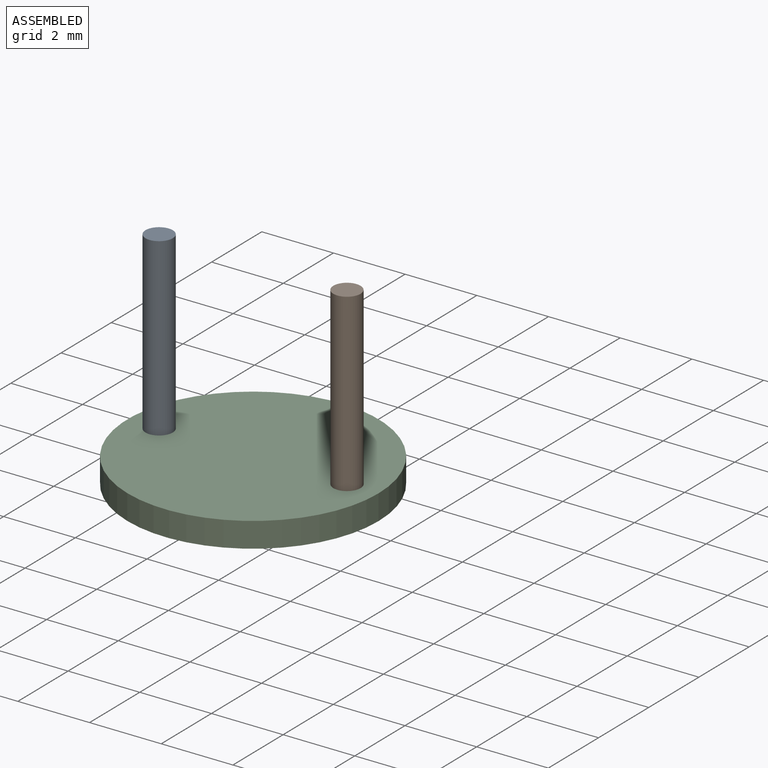
[diagram: assembled view]
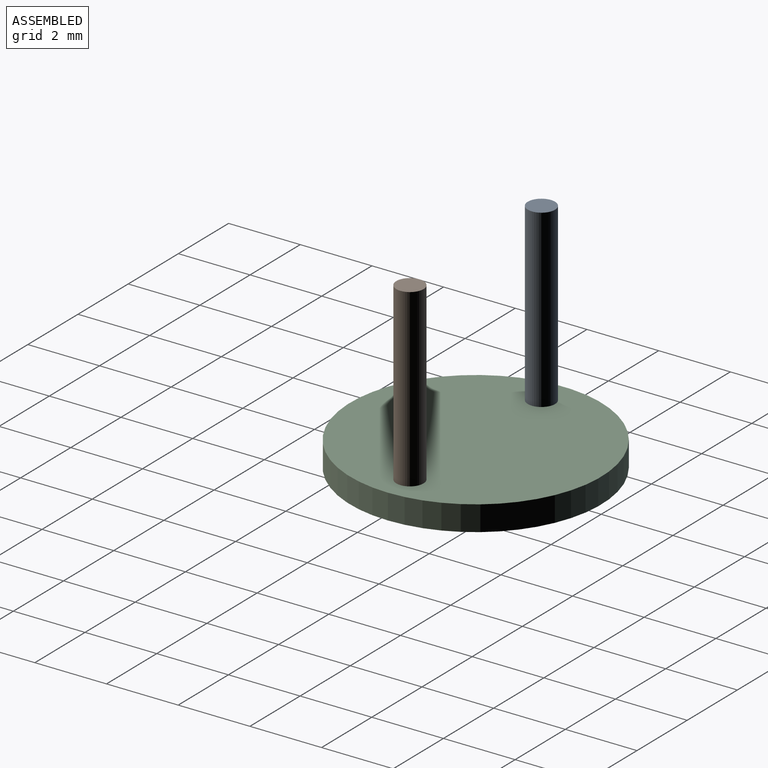
[diagram: assembled view, second angle]
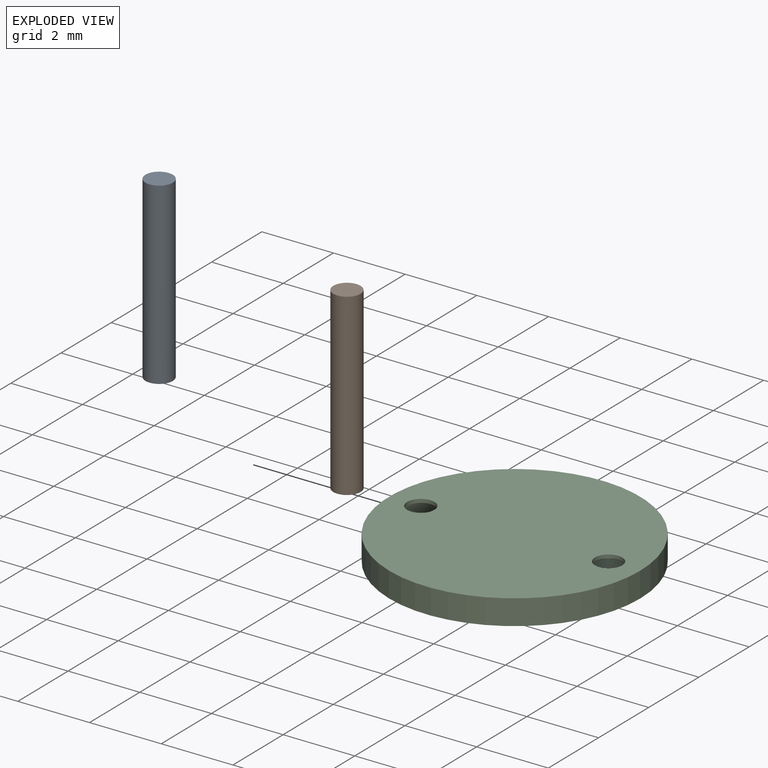
[diagram: exploded view]
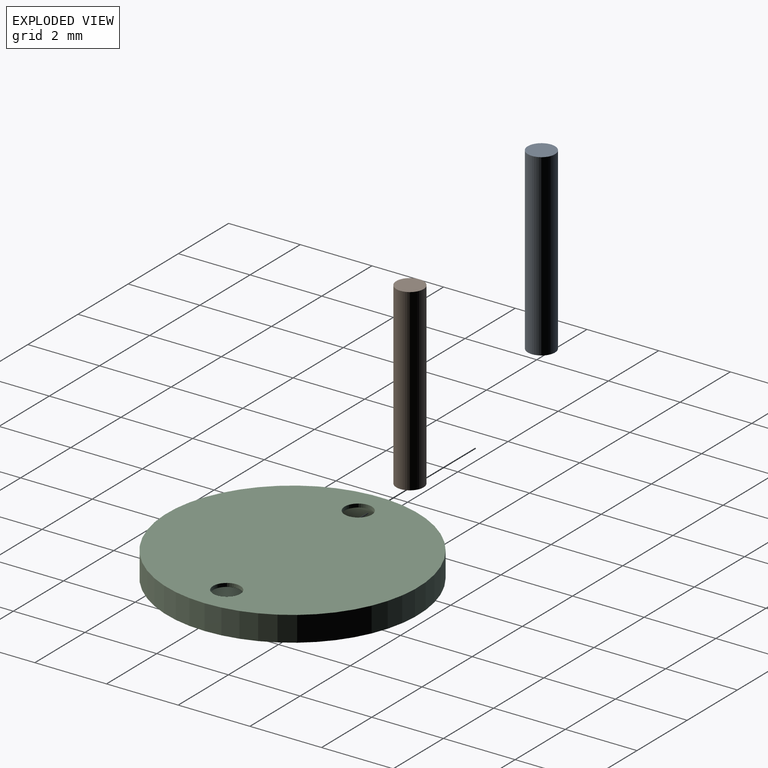
[diagram: exploded view, second angle]
ASSEMBLY  parts=3 mates=2
PART A: 3 faces, bbox 0.8x0.8x5 mm
  f0: cylinder r=0.38mm len=5mm, axis (0,0,-1), area 11.9mm2, adj f1,f2
  f1: plane 0.76x0.76mm, normal (0,0,1), area 0.5mm2, adj f0
  f2: plane 0.76x0.76mm, normal (0,0,-1), area 0.5mm2, adj f0
PART B: 3 faces, bbox 0.8x0.8x5 mm
  f0: cylinder r=0.38mm len=5mm, axis (0,0,-1), area 11.9mm2, adj f1,f2
  f1: plane 0.76x0.76mm, normal (0,0,1), area 0.5mm2, adj f0
  f2: plane 0.76x0.76mm, normal (0,0,-1), area 0.5mm2, adj f0
PART C: 15 faces, bbox 7x7x0.7 mm
  f0: plane 2x0.5mm, normal (1,0,0), area 1mm2, adj f1,f7,f8,f9
  f1: cylinder r=0.5mm len=0.5mm, axis (0,0,1), area 0.4mm2, adj f0,f2,f8,f9
  f2: plane 5x0.5mm, normal (0,1,0), area 2.5mm2, adj f1,f3,f8,f9
  f3: cylinder r=0.5mm len=0.5mm, axis (0,0,1), area 0.4mm2, adj f2,f4,f8,f9
  f4: plane 2x0.5mm, normal (-1,0,0), area 1mm2, adj f3,f5,f8,f9
  f5: cylinder r=0.5mm len=0.5mm, axis (0,0,1), area 0.4mm2, adj f4,f6,f8,f9
  f6: plane 5x0.5mm, normal (0,-1,0), area 2.5mm2, adj f5,f7,f8,f9
  f7: cylinder r=0.5mm len=0.5mm, axis (0,0,1), area 0.4mm2, adj f0,f6,f8,f9
  f8: plane 6x3mm, normal (0,0,1), area 17.8mm2, adj f0,f1,f2,f3,f4,f5,f6,f7
  f9: plane 6x3mm, normal (0,0,-1), area 16.9mm2, adj f0,f1,f2,f3,f4,f5,f6,f7
  f10: cylinder r=0.38mm len=0.76mm, axis (0,0,1), area 0.2mm2, adj f9,f13
  f11: cylinder r=0.38mm len=0.76mm, axis (0,0,1), area 0.2mm2, adj f9,f13
  f12: cylinder r=3.5mm len=7mm, axis (0,0,-1), area 15.4mm2, adj f13,f14
  f13: plane 7x7mm, normal (0,0,1), area 37.6mm2, adj f10,f11,f12
  f14: plane 7x7mm, normal (0,0,-1), area 38.5mm2, adj f12
PLACE A t=(9.14,3.14,-0.82)mm
PLACE B t=(16.21,3.01,-0.82)mm
PLACE C t=(1.87,-1.59,-1.42)mm
MATE fastened B.f0 <-> C.f10  axis (0,0,-1) through (4.49,-1.59,-0.82)mm
MATE fastened A.f0 <-> C.f11  axis (0,0,-1) through (-0.75,-1.59,-0.82)mm
